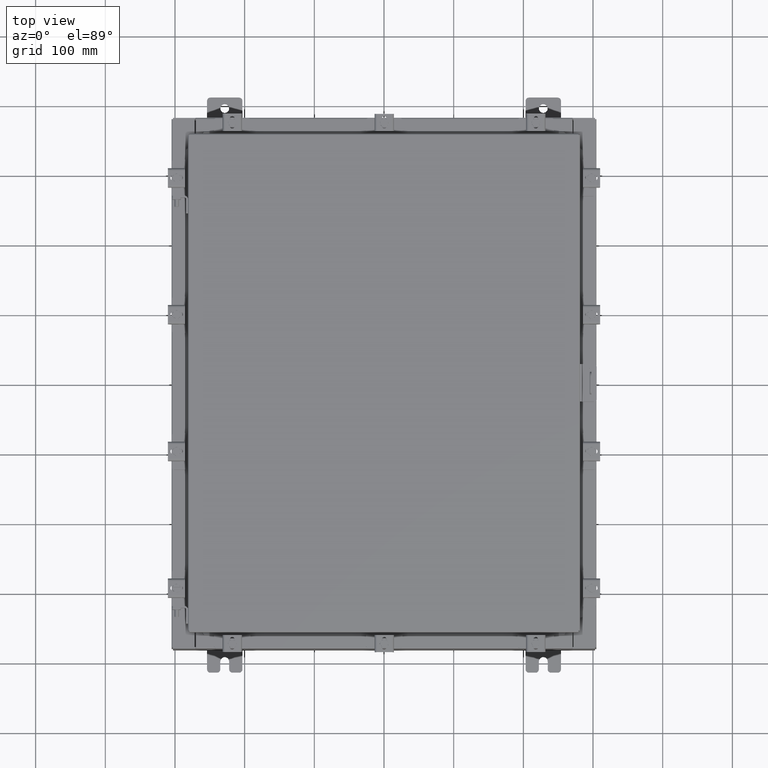
[diagram: clean part render]
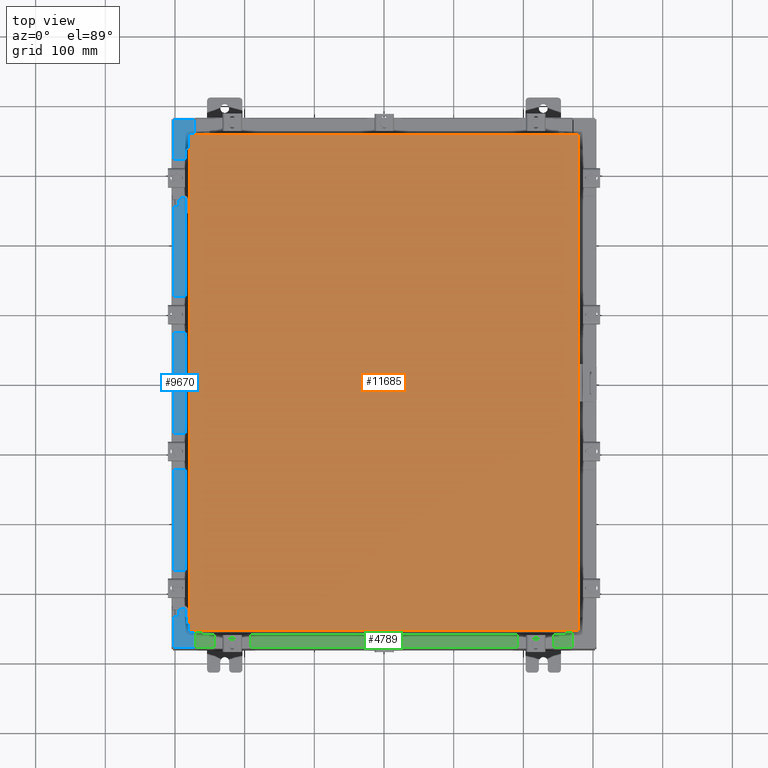
[diagram: same view with three faces highlighted in distinct colors, each labeled with its STEP entity id]
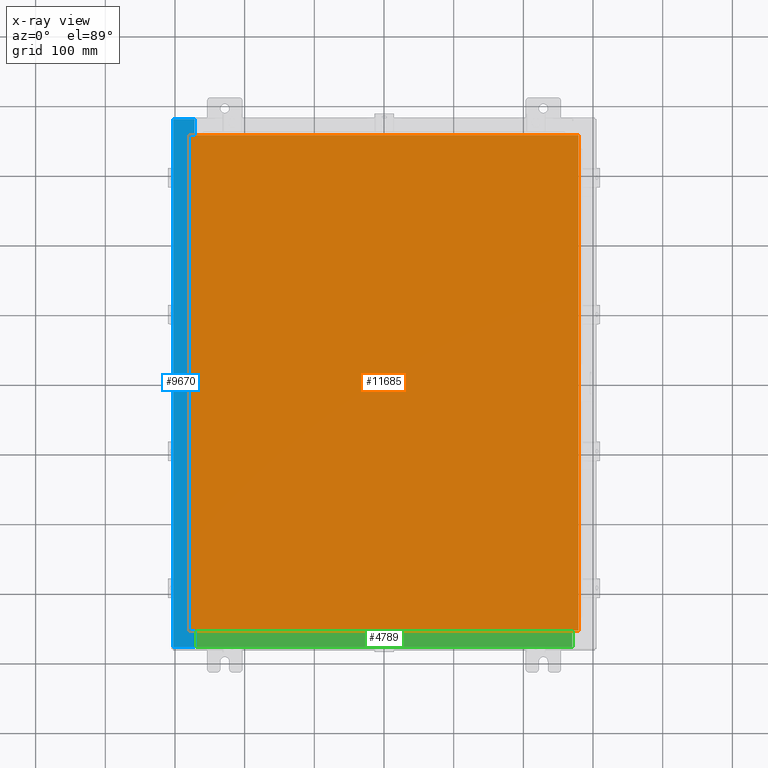
[diagram: x-ray of the same camera — body ghosted, the three highlighted faces saturated]
A machine part, top view with three faces highlighted in distinct colors.
The next image is the same camera in x-ray (body ghosted, the three faces saturated) — at least one of them is partly hidden behind the body in this view.
Their STEP definitions:

[orange] entity #11685 — the highlighted planar face has unit normal (0, 0, -1).
#1741 = VECTOR ( 'NONE', #12589, 39.37007874015748100 ) ;
#1882 = DIRECTION ( 'NONE',  ( 0.0000000000000000000, 0.0000000000000000000, -1.000000000000000000 ) ) ;
#2514 = DIRECTION ( 'NONE',  ( 1.000000000000000000, -0.0000000000000000000, -0.0000000000000000000 ) ) ;
#2728 = LINE ( 'NONE', #4248, #21222 ) ;
#3602 = CARTESIAN_POINT ( 'NONE',  ( 10.99030000000000000, 14.00629999999999800, -2.048885995248197400E-016 ) ) ;
#4248 = CARTESIAN_POINT ( 'NONE',  ( -10.99029999999999600, -14.00629999999999800, -2.219626494852214000E-016 ) ) ;
#5048 = VERTEX_POINT ( 'NONE', #6258 ) ;
#5334 = CARTESIAN_POINT ( 'NONE',  ( -10.99030000000000000, 14.00630000000000100, -2.048885995248197400E-016 ) ) ;
#6258 = CARTESIAN_POINT ( 'NONE',  ( 10.99030000000000000, 14.00629999999999800, -2.048885995248197400E-016 ) ) ;
#7144 = FACE_OUTER_BOUND ( 'NONE', #10627, .T. ) ;
#7535 = VECTOR ( 'NONE', #8617, 39.37007874015748100 ) ;
#8617 = DIRECTION ( 'NONE',  ( 0.0000000000000000000, 1.000000000000000000, 0.0000000000000000000 ) ) ;
#9186 = ORIENTED_EDGE ( 'NONE', *, *, #14958, .T. ) ;
#9741 = ORIENTED_EDGE ( 'NONE', *, *, #17679, .T. ) ;
#10627 = EDGE_LOOP ( 'NONE', ( #11720, #9741, #22297, #9186 ) ) ;
#11635 = VERTEX_POINT ( 'NONE', #5334 ) ;
#11685 = ADVANCED_FACE ( 'NONE', ( #7144 ), #12610, .F. ) ;
#11720 = ORIENTED_EDGE ( 'NONE', *, *, #19900, .T. ) ;
#12589 = DIRECTION ( 'NONE',  ( -1.000000000000000000, -0.0000000000000000000, -0.0000000000000000000 ) ) ;
#12610 = PLANE ( 'NONE',  #15049 ) ;
#12665 = LINE ( 'NONE', #12933, #15743 ) ;
#12933 = CARTESIAN_POINT ( 'NONE',  ( -10.99030000000000000, 14.00630000000000100, -2.048885995248197400E-016 ) ) ;
#14383 = DIRECTION ( 'NONE',  ( -1.000000000000000000, 0.0000000000000000000, -0.0000000000000000000 ) ) ;
#14797 = VERTEX_POINT ( 'NONE', #19462 ) ;
#14958 = EDGE_CURVE ( 'NONE', #11635, #15345, #12665, .T. ) ;
#15049 = AXIS2_PLACEMENT_3D ( 'NONE', #17930, #1882, #14383 ) ;
#15345 = VERTEX_POINT ( 'NONE', #16317 ) ;
#15455 = LINE ( 'NONE', #3602, #1741 ) ;
#15743 = VECTOR ( 'NONE', #20104, 39.37007874015748100 ) ;
#16171 = EDGE_CURVE ( 'NONE', #5048, #11635, #15455, .T. ) ;
#16317 = CARTESIAN_POINT ( 'NONE',  ( -10.99029999999999800, -14.00629999999999800, -2.048885995248197400E-016 ) ) ;
#17555 = CARTESIAN_POINT ( 'NONE',  ( 10.99030000000000000, -14.00629999999999800, -2.048885995248197400E-016 ) ) ;
#17633 = LINE ( 'NONE', #17555, #7535 ) ;
#17679 = EDGE_CURVE ( 'NONE', #14797, #5048, #17633, .T. ) ;
#17930 = CARTESIAN_POINT ( 'NONE',  ( 0.0000000000000000000, 0.0000000000000000000, 0.0000000000000000000 ) ) ;
#19462 = CARTESIAN_POINT ( 'NONE',  ( 10.99030000000000000, -14.00629999999999800, -2.048885995248197400E-016 ) ) ;
#19900 = EDGE_CURVE ( 'NONE', #15345, #14797, #2728, .T. ) ;
#20104 = DIRECTION ( 'NONE',  ( 0.0000000000000000000, -1.000000000000000000, 0.0000000000000000000 ) ) ;
#21222 = VECTOR ( 'NONE', #2514, 39.37007874015748100 ) ;
#22297 = ORIENTED_EDGE ( 'NONE', *, *, #16171, .T. ) ;

[blue] entity #9670 — the highlighted planar face has unit normal (0, 0, -1).
#262 = CARTESIAN_POINT ( 'NONE',  ( -11.91230000000002500, 14.92530000000000000, 5.925299999999999100 ) ) ;
#397 = VERTEX_POINT ( 'NONE', #4231 ) ;
#697 = DIRECTION ( 'NONE',  ( 1.000000000000000000, 0.0000000000000000000, 0.0000000000000000000 ) ) ;
#964 = VERTEX_POINT ( 'NONE', #22543 ) ;
#983 = EDGE_CURVE ( 'NONE', #10013, #964, #14649, .T. ) ;
#1315 = VECTOR ( 'NONE', #12202, 39.37007874015748100 ) ;
#1637 = CARTESIAN_POINT ( 'NONE',  ( -10.75005000000002500, -13.59375000000000000, 5.925300000000008000 ) ) ;
#1861 = LINE ( 'NONE', #10376, #1315 ) ;
#1940 = VERTEX_POINT ( 'NONE', #9080 ) ;
#2028 = EDGE_CURVE ( 'NONE', #16408, #21543, #6866, .T. ) ;
#2366 = VECTOR ( 'NONE', #22841, 39.37007874015748100 ) ;
#2410 = LINE ( 'NONE', #22126, #16122 ) ;
#2714 = CIRCLE ( 'NONE', #7732, 0.01867499999999949400 ) ;
#2944 = LINE ( 'NONE', #21066, #2366 ) ;
#3177 = AXIS2_PLACEMENT_3D ( 'NONE', #3438, #15952, #5246 ) ;
#3438 = CARTESIAN_POINT ( 'NONE',  ( -10.75005000000002500, -13.61242500000000000, 5.925300000000009800 ) ) ;
#3559 = EDGE_CURVE ( 'NONE', #16408, #21993, #12674, .T. ) ;
#3790 = LINE ( 'NONE', #9427, #22252 ) ;
#3857 = ORIENTED_EDGE ( 'NONE', *, *, #9720, .F. ) ;
#4210 = CARTESIAN_POINT ( 'NONE',  ( -10.69970000000002500, 14.92530000000000000, 5.925300000000008000 ) ) ;
#4231 = CARTESIAN_POINT ( 'NONE',  ( -10.71270000000002700, -13.59375000000000000, 5.925300000000009800 ) ) ;
#4449 = CARTESIAN_POINT ( 'NONE',  ( -10.75005000000002500, 13.59374999999999800, 5.925300000000008000 ) ) ;
#5246 = DIRECTION ( 'NONE',  ( 1.000000000000000000, 0.0000000000000000000, 0.0000000000000000000 ) ) ;
#5723 = VECTOR ( 'NONE', #15689, 39.37007874015748100 ) ;
#5806 = EDGE_CURVE ( 'NONE', #10013, #19687, #18274, .T. ) ;
#6691 = ORIENTED_EDGE ( 'NONE', *, *, #10477, .F. ) ;
#6866 = LINE ( 'NONE', #16081, #5723 ) ;
#6911 = AXIS2_PLACEMENT_3D ( 'NONE', #7137, #19685, #8908 ) ;
#6995 = EDGE_CURVE ( 'NONE', #18931, #397, #14273, .T. ) ;
#7137 = CARTESIAN_POINT ( 'NONE',  ( -4.252457061909017700E-014, 0.0000000000000000000, 5.925300000000084400 ) ) ;
#7282 = DIRECTION ( 'NONE',  ( -1.000000000000000000, 0.0000000000000000000, 0.0000000000000000000 ) ) ;
#7732 = AXIS2_PLACEMENT_3D ( 'NONE', #19660, #8889, #21464 ) ;
#7924 = CARTESIAN_POINT ( 'NONE',  ( -10.71270000000002700, 13.59375000000000000, 5.925300000000009800 ) ) ;
#8065 = ORIENTED_EDGE ( 'NONE', *, *, #20255, .T. ) ;
#8348 = CARTESIAN_POINT ( 'NONE',  ( -4.252457061909017700E-014, -14.92530000000000000, 5.925300000000084400 ) ) ;
#8842 = ORIENTED_EDGE ( 'NONE', *, *, #5806, .F. ) ;
#8889 = DIRECTION ( 'NONE',  ( -7.132762385546384700E-015, -0.0000000000000000000, 1.000000000000000000 ) ) ;
#8908 = DIRECTION ( 'NONE',  ( -1.000000000000000000, 0.0000000000000000000, -7.132762385546384700E-015 ) ) ;
#9080 = CARTESIAN_POINT ( 'NONE',  ( -10.75005000000002500, -13.63109999999999800, 5.925300000000008000 ) ) ;
#9153 = FACE_OUTER_BOUND ( 'NONE', #17815, .T. ) ;
#9427 = CARTESIAN_POINT ( 'NONE',  ( -10.75005000000002500, -13.63109999999999800, 5.925300000000009800 ) ) ;
#9670 = ADVANCED_FACE ( 'NONE', ( #9153 ), #17875, .F. ) ;
#9720 = EDGE_CURVE ( 'NONE', #397, #12237, #17029, .T. ) ;
#9950 = VERTEX_POINT ( 'NONE', #14609 ) ;
#10013 = VERTEX_POINT ( 'NONE', #16498 ) ;
#10376 = CARTESIAN_POINT ( 'NONE',  ( -4.252457061909017700E-014, 14.92530000000000000, 5.925300000000084400 ) ) ;
#10417 = CARTESIAN_POINT ( 'NONE',  ( -10.75005000000002500, 13.63109999999999600, 5.925300000000008000 ) ) ;
#10477 = EDGE_CURVE ( 'NONE', #12237, #1940, #23159, .T. ) ;
#10795 = CARTESIAN_POINT ( 'NONE',  ( -10.71270000000002700, -13.59375000000000000, 5.925300000000009800 ) ) ;
#11493 = ORIENTED_EDGE ( 'NONE', *, *, #2028, .T. ) ;
#11653 = CARTESIAN_POINT ( 'NONE',  ( -11.91230000000002500, 14.92530000000000000, 5.925299999999999100 ) ) ;
#11683 = VECTOR ( 'NONE', #7282, 39.37007874015748100 ) ;
#11822 = EDGE_CURVE ( 'NONE', #1940, #9950, #3790, .T. ) ;
#11848 = ORIENTED_EDGE ( 'NONE', *, *, #12088, .T. ) ;
#12088 = EDGE_CURVE ( 'NONE', #964, #9950, #2944, .T. ) ;
#12202 = DIRECTION ( 'NONE',  ( -1.000000000000000000, -3.263857780453126100E-032, -7.132762385546384700E-015 ) ) ;
#12237 = VERTEX_POINT ( 'NONE', #1637 ) ;
#12626 = VERTEX_POINT ( 'NONE', #4449 ) ;
#12674 = LINE ( 'NONE', #18982, #17439 ) ;
#13538 = ORIENTED_EDGE ( 'NONE', *, *, #20718, .F. ) ;
#13743 = VECTOR ( 'NONE', #16833, 39.37007874015748100 ) ;
#13991 = ORIENTED_EDGE ( 'NONE', *, *, #11822, .F. ) ;
#14273 = LINE ( 'NONE', #7924, #13743 ) ;
#14292 = ORIENTED_EDGE ( 'NONE', *, *, #3559, .F. ) ;
#14609 = CARTESIAN_POINT ( 'NONE',  ( -10.69970000000002500, -13.63110000000000200, 5.925300000000008000 ) ) ;
#14649 = LINE ( 'NONE', #8348, #19449 ) ;
#15689 = DIRECTION ( 'NONE',  ( -2.493308838643432600E-031, 1.000000000000000000, -1.778417949982621800E-045 ) ) ;
#15952 = DIRECTION ( 'NONE',  ( -7.132762385546384700E-015, -0.0000000000000000000, 1.000000000000000000 ) ) ;
#16014 = CARTESIAN_POINT ( 'NONE',  ( -10.71270000000002700, 13.59374999999999800, 5.925300000000009800 ) ) ;
#16081 = CARTESIAN_POINT ( 'NONE',  ( -10.69970000000002500, -2.667765658083309700E-030, 5.925300000000008000 ) ) ;
#16122 = VECTOR ( 'NONE', #697, 39.37007874015748100 ) ;
#16408 = VERTEX_POINT ( 'NONE', #18623 ) ;
#16498 = CARTESIAN_POINT ( 'NONE',  ( -11.91230000000002500, -14.92530000000000000, 5.925299999999999100 ) ) ;
#16833 = DIRECTION ( 'NONE',  ( -0.0000000000000000000, -1.000000000000000000, -0.0000000000000000000 ) ) ;
#17029 = LINE ( 'NONE', #10795, #11683 ) ;
#17439 = VECTOR ( 'NONE', #19218, 39.37007874015748100 ) ;
#17815 = EDGE_LOOP ( 'NONE', ( #14292, #11493, #8065, #8842, #21676, #11848, #13991, #6691, #3857, #19670, #22992, #13538 ) ) ;
#17875 = PLANE ( 'NONE',  #6911 ) ;
#18274 = LINE ( 'NONE', #11653, #21381 ) ;
#18623 = CARTESIAN_POINT ( 'NONE',  ( -10.69970000000002500, 13.63109999999999600, 5.925300000000008000 ) ) ;
#18804 = DIRECTION ( 'NONE',  ( -0.0000000000000000000, 1.000000000000000000, -0.0000000000000000000 ) ) ;
#18931 = VERTEX_POINT ( 'NONE', #16014 ) ;
#18982 = CARTESIAN_POINT ( 'NONE',  ( -10.69970000000002500, 13.63109999999999600, 5.925300000000008900 ) ) ;
#19218 = DIRECTION ( 'NONE',  ( -1.000000000000000000, 0.0000000000000000000, 2.170286390200049500E-014 ) ) ;
#19449 = VECTOR ( 'NONE', #21141, 39.37007874015748100 ) ;
#19660 = CARTESIAN_POINT ( 'NONE',  ( -10.75005000000002500, 13.61242499999999600, 5.925300000000009800 ) ) ;
#19670 = ORIENTED_EDGE ( 'NONE', *, *, #6995, .F. ) ;
#19685 = DIRECTION ( 'NONE',  ( 7.132762385546384700E-015, 0.0000000000000000000, -1.000000000000000000 ) ) ;
#19687 = VERTEX_POINT ( 'NONE', #262 ) ;
#20255 = EDGE_CURVE ( 'NONE', #21543, #19687, #1861, .T. ) ;
#20718 = EDGE_CURVE ( 'NONE', #21993, #12626, #2714, .T. ) ;
#20985 = EDGE_CURVE ( 'NONE', #12626, #18931, #2410, .T. ) ;
#21066 = CARTESIAN_POINT ( 'NONE',  ( -10.69970000000002500, -2.667765658083309700E-030, 5.925300000000008000 ) ) ;
#21141 = DIRECTION ( 'NONE',  ( 1.000000000000000000, 0.0000000000000000000, 7.132762385546384700E-015 ) ) ;
#21381 = VECTOR ( 'NONE', #18804, 39.37007874015748100 ) ;
#21464 = DIRECTION ( 'NONE',  ( 1.000000000000000000, 0.0000000000000000000, 0.0000000000000000000 ) ) ;
#21543 = VERTEX_POINT ( 'NONE', #4210 ) ;
#21676 = ORIENTED_EDGE ( 'NONE', *, *, #983, .T. ) ;
#21978 = DIRECTION ( 'NONE',  ( 1.000000000000000000, 0.0000000000000000000, -2.170286390200049500E-014 ) ) ;
#21993 = VERTEX_POINT ( 'NONE', #10417 ) ;
#22126 = CARTESIAN_POINT ( 'NONE',  ( -10.75005000000002500, 13.59374999999999800, 5.925300000000009800 ) ) ;
#22252 = VECTOR ( 'NONE', #21978, 39.37007874015748100 ) ;
#22543 = CARTESIAN_POINT ( 'NONE',  ( -10.69970000000002500, -14.92530000000000000, 5.925300000000008000 ) ) ;
#22841 = DIRECTION ( 'NONE',  ( -2.493308838643432600E-031, 1.000000000000000000, -1.778417949982621800E-045 ) ) ;
#22992 = ORIENTED_EDGE ( 'NONE', *, *, #20985, .F. ) ;
#23159 = CIRCLE ( 'NONE', #3177, 0.01867499999999949400 ) ;

[green] entity #4789 — the highlighted planar face has unit normal (-0, -0, 1).
#132 = VERTEX_POINT ( 'NONE', #3064 ) ;
#511 = LINE ( 'NONE', #1626, #18993 ) ;
#1563 = LINE ( 'NONE', #5065, #6879 ) ;
#1626 = CARTESIAN_POINT ( 'NONE',  ( 10.63720000000000200, -1.300299999999999800, 3.000000000000005300 ) ) ;
#1666 = EDGE_CURVE ( 'NONE', #9765, #15722, #6596, .T. ) ;
#1761 = LINE ( 'NONE', #11925, #11229 ) ;
#2683 = CARTESIAN_POINT ( 'NONE',  ( -10.63720000000000200, -0.08770000000000000000, 3.000000000000000900 ) ) ;
#3035 = DIRECTION ( 'NONE',  ( -1.000000000000000000, 2.568202152506545800E-017, -9.159187855938968600E-032 ) ) ;
#3064 = CARTESIAN_POINT ( 'NONE',  ( 10.63720000000000200, -1.287299999999999900, 3.000000000000005300 ) ) ;
#4789 = ADVANCED_FACE ( 'NONE', ( #16249 ), #20697, .T. ) ;
#4910 = AXIS2_PLACEMENT_3D ( 'NONE', #18786, #18087, #17224 ) ;
#5065 = CARTESIAN_POINT ( 'NONE',  ( 10.63720000000000400, -1.287299999999999900, 3.000000000000005300 ) ) ;
#5162 = ORIENTED_EDGE ( 'NONE', *, *, #12884, .F. ) ;
#5783 = ORIENTED_EDGE ( 'NONE', *, *, #14660, .T. ) ;
#6596 = LINE ( 'NONE', #22009, #20353 ) ;
#6879 = VECTOR ( 'NONE', #15761, 39.37007874015748100 ) ;
#9765 = VERTEX_POINT ( 'NONE', #11153 ) ;
#10518 = DIRECTION ( 'NONE',  ( -0.0000000000000000000, -1.000000000000000000, 3.566381192773190000E-015 ) ) ;
#11153 = CARTESIAN_POINT ( 'NONE',  ( -10.63720000000000200, -1.287299999999999200, 3.000000000000005300 ) ) ;
#11229 = VECTOR ( 'NONE', #3035, 39.37007874015748100 ) ;
#11509 = ORIENTED_EDGE ( 'NONE', *, *, #18902, .F. ) ;
#11925 = CARTESIAN_POINT ( 'NONE',  ( -2.252313287748515100E-018, -0.08770000000000000000, 3.000000000000001300 ) ) ;
#12559 = VERTEX_POINT ( 'NONE', #14980 ) ;
#12884 = EDGE_CURVE ( 'NONE', #132, #9765, #1563, .T. ) ;
#14660 = EDGE_CURVE ( 'NONE', #12559, #15722, #1761, .T. ) ;
#14925 = EDGE_LOOP ( 'NONE', ( #17481, #5162, #11509, #5783 ) ) ;
#14980 = CARTESIAN_POINT ( 'NONE',  ( 10.63720000000000400, -0.08769999999999965300, 3.000000000000000900 ) ) ;
#15722 = VERTEX_POINT ( 'NONE', #2683 ) ;
#15761 = DIRECTION ( 'NONE',  ( -1.000000000000000000, 0.0000000000000000000, 0.0000000000000000000 ) ) ;
#16249 = FACE_OUTER_BOUND ( 'NONE', #14925, .T. ) ;
#17224 = DIRECTION ( 'NONE',  ( 0.0000000000000000000, -1.000000000000000000, 3.566381192773190000E-015 ) ) ;
#17387 = DIRECTION ( 'NONE',  ( -0.0000000000000000000, 1.000000000000000000, -3.566381192773190000E-015 ) ) ;
#17481 = ORIENTED_EDGE ( 'NONE', *, *, #1666, .F. ) ;
#18087 = DIRECTION ( 'NONE',  ( 0.0000000000000000000, 3.566381192773190000E-015, 1.000000000000000000 ) ) ;
#18786 = CARTESIAN_POINT ( 'NONE',  ( 0.0000000000000000000, 1.069354855923099900E-014, 3.000000000000000900 ) ) ;
#18902 = EDGE_CURVE ( 'NONE', #12559, #132, #511, .T. ) ;
#18993 = VECTOR ( 'NONE', #10518, 39.37007874015748100 ) ;
#20353 = VECTOR ( 'NONE', #17387, 39.37007874015748100 ) ;
#20697 = PLANE ( 'NONE',  #4910 ) ;
#22009 = CARTESIAN_POINT ( 'NONE',  ( -10.63720000000000200, -0.07469999999999973900, 3.000000000000000900 ) ) ;